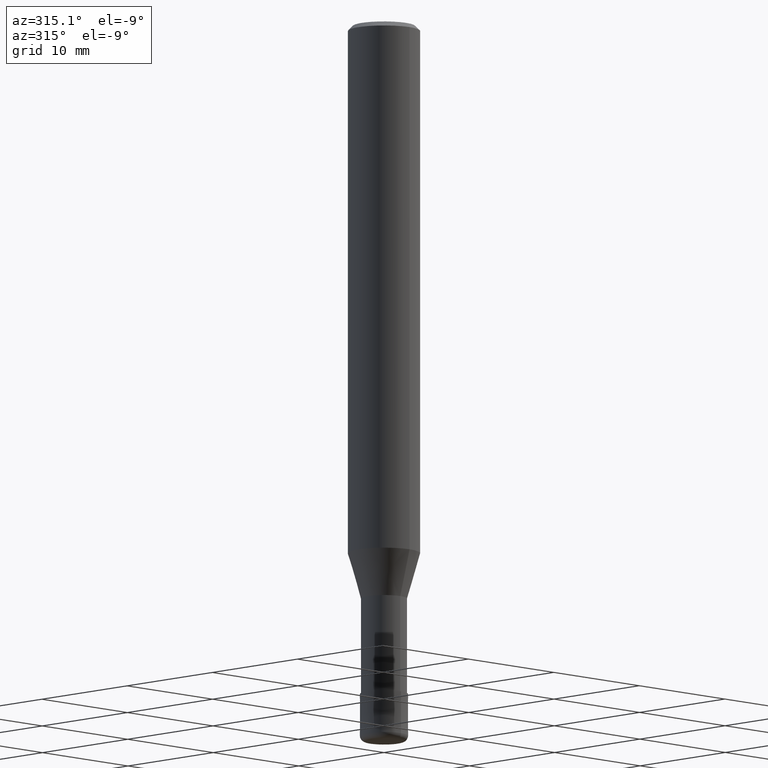
[diagram: clean part render]
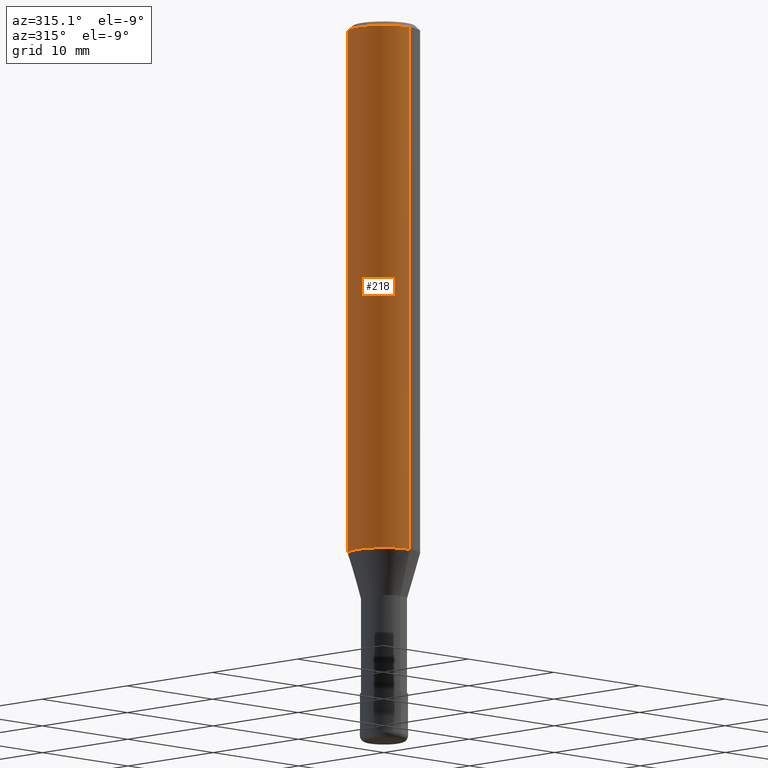
[diagram: same view with one face highlighted and labeled with its STEP entity id]
A machine part, auxiliary view. The second image highlights one B-rep face of the part: STEP entity #218.
In plain terms, the highlighted cylindrical surface (edge-blend (fillet) strip) has radius 3 mm, axis along (-0, -0, 1).
Its self-contained STEP definition (entity closure, byte-faithful):
#104=EDGE_CURVE('',#216,#232,#257,.T.);
#110=EDGE_CURVE('',#208,#142,#264,.T.);
#142=VERTEX_POINT('',#299);
#208=VERTEX_POINT('',#373);
#210=EDGE_CURVE('',#216,#208,#375,.T.);
#216=VERTEX_POINT('',#382);
#218=ADVANCED_FACE('',(#384),#385,.T.);
#224=EDGE_CURVE('',#142,#232,#392,.T.);
#232=VERTEX_POINT('',#403);
#257=CIRCLE('',#422,3.0);
#264=CIRCLE('',#431,3.0);
#299=CARTESIAN_POINT('',(0.0,3.0,-0.399999999999999));
#373=CARTESIAN_POINT('',(3.67381906146713E-016,-3.0,-0.399999999999999));
#375=LINE('',#568,#569);
#382=CARTESIAN_POINT('',(3.67381906146713E-016,-3.0,-44.199));
#384=FACE_OUTER_BOUND('',#580,.T.);
#385=CYLINDRICAL_SURFACE('',#581,3.0);
#392=LINE('',#590,#591);
#403=CARTESIAN_POINT('',(0.0,3.0,-44.199));
#422=AXIS2_PLACEMENT_3D('',#609,#610,#611);
#431=AXIS2_PLACEMENT_3D('',#623,#624,#625);
#568=CARTESIAN_POINT('',(3.67381906146713E-016,-3.0,-22.2995));
#569=VECTOR('',#761,1.0);
#580=EDGE_LOOP('',(#772,#773,#774,#775));
#581=AXIS2_PLACEMENT_3D('',#776,#777,#778);
#590=CARTESIAN_POINT('',(-3.67381906146713E-016,3.0,-22.2995));
#591=VECTOR('',#788,1.0);
#609=CARTESIAN_POINT('',(0.0,0.0,-44.199));
#610=DIRECTION('',(0.0,0.0,-1.0));
#611=DIRECTION('',(0.0,1.0,0.0));
#623=CARTESIAN_POINT('',(0.0,0.0,-0.399999999999999));
#624=DIRECTION('',(0.0,0.0,-1.0));
#625=DIRECTION('',(0.0,1.0,0.0));
#761=DIRECTION('',(-0.0,-0.0,1.0));
#772=ORIENTED_EDGE('',*,*,#224,.T.);
#773=ORIENTED_EDGE('',*,*,#104,.F.);
#774=ORIENTED_EDGE('',*,*,#210,.T.);
#775=ORIENTED_EDGE('',*,*,#110,.T.);
#776=CARTESIAN_POINT('',(0.0,0.0,-22.2995));
#777=DIRECTION('',(-0.0,-0.0,1.0));
#778=DIRECTION('',(0.0,1.0,0.0));
#788=DIRECTION('',(0.0,0.0,-1.0));